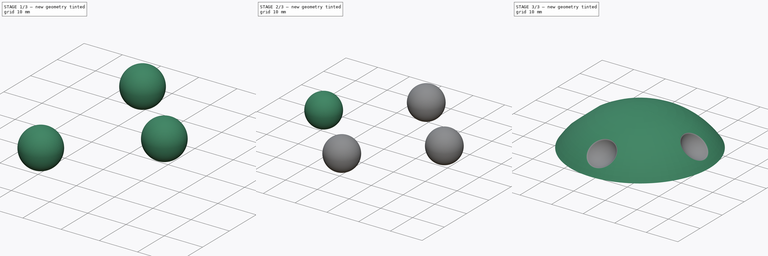
[diagram: build sequence overview — one tinted view per stage of 3, left to right]
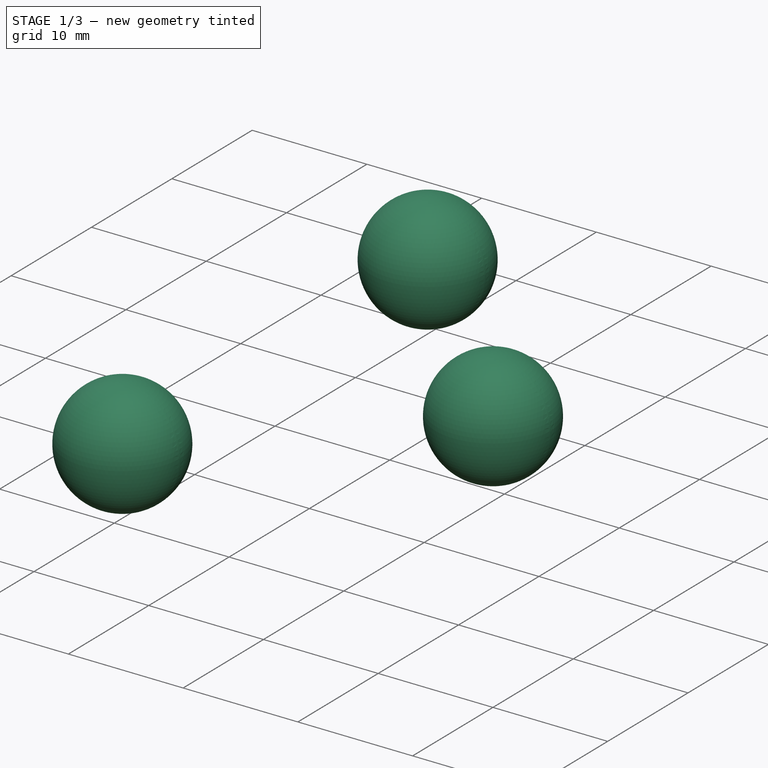
[diagram: stage 1 of 3 — iso view after this stage's code; geometry added in this stage tinted green]
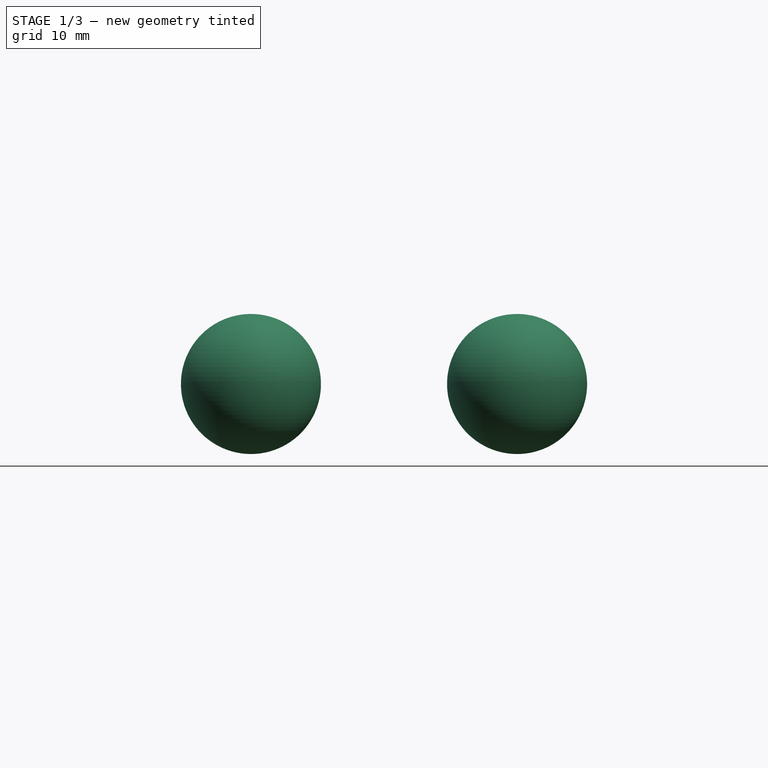
[diagram: stage 1 of 3 — front view after this stage's code; geometry added in this stage tinted green]
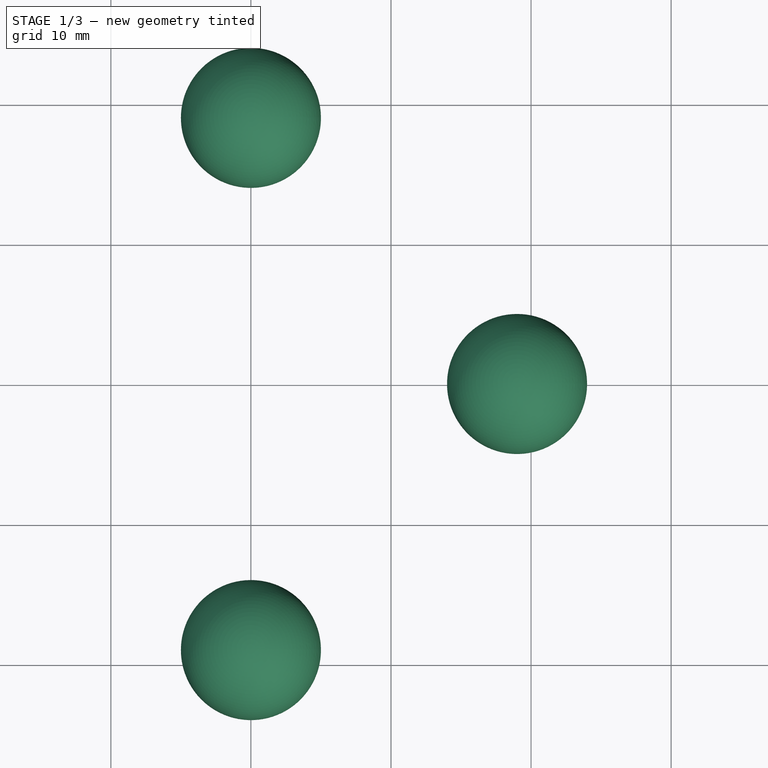
[diagram: stage 1 of 3 — top view after this stage's code; geometry added in this stage tinted green]
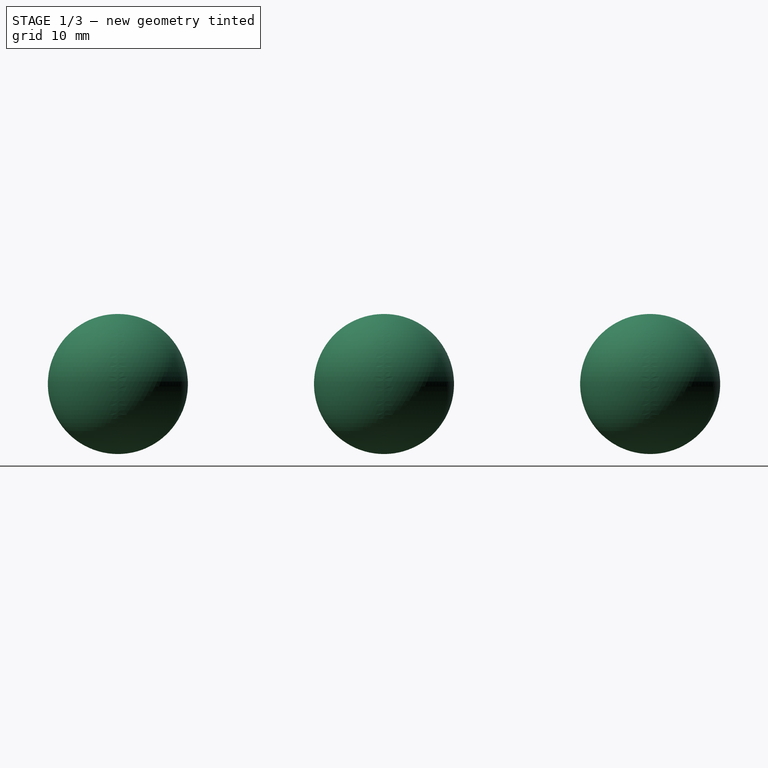
[diagram: stage 1 of 3 — right view after this stage's code; geometry added in this stage tinted green]
FCSTD DOCUMENT  (FreeCAD 0.16R5446 (Git))
Label: tv_cable_plug
License: All rights reserved
LicenseURL: http://en.wikipedia.org/wiki/All_rights_reserved
objects: Part::Sphere×4, Sketcher::SketchObject×1, PartDesign::Revolution×1, Part::MultiFuse×1, Part::Cut×1, PartDesign::Fillet×1
note: 10 computed .brp shape members not serialized (recipe doc carries the construction recipe); baked Part::Feature solids carry a one-line shape summary decoded from their .brp

FEATURE [Part::Sphere] Sphere001
  Angle1 = -90
  Angle2 = 90
  Angle3 = 360
  Placement = pos=(19,0,7) rot=(0,0,1;0rad)
  Radius = 5
FEATURE [Part::Sphere] Sphere002
  Angle1 = -90
  Angle2 = 90
  Angle3 = 360
  Placement = pos=(0,19,7) rot=(0,0,1;0rad)
  Radius = 5
FEATURE [Part::Sphere] Sphere003
  Angle1 = -90
  Angle2 = 90
  Angle3 = 360
  Placement = pos=(0,-19,7) rot=(0,0,1;0rad)
  Radius = 5
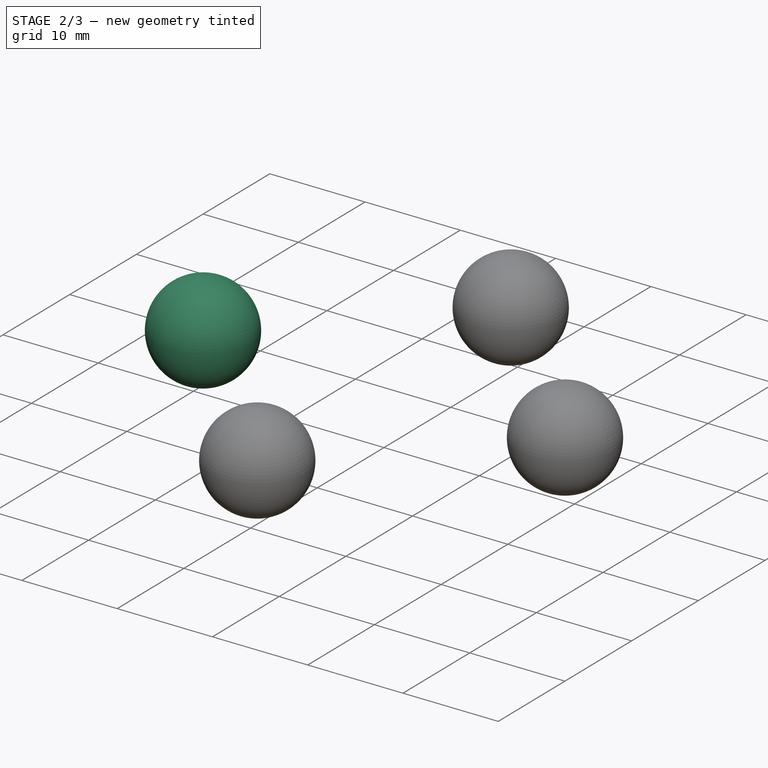
[diagram: stage 2 of 3 — iso view after this stage's code; geometry added in this stage tinted green]
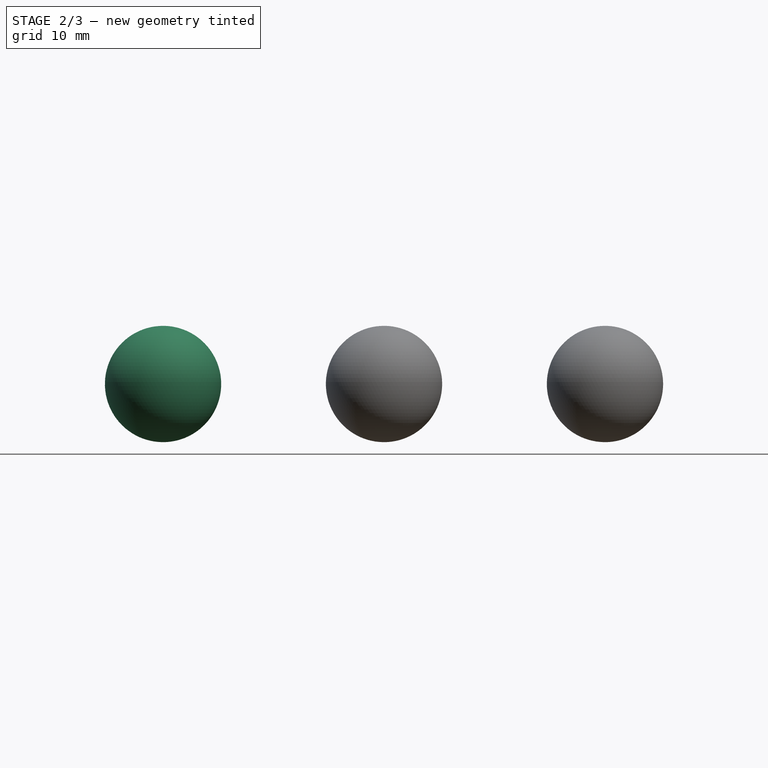
[diagram: stage 2 of 3 — front view after this stage's code; geometry added in this stage tinted green]
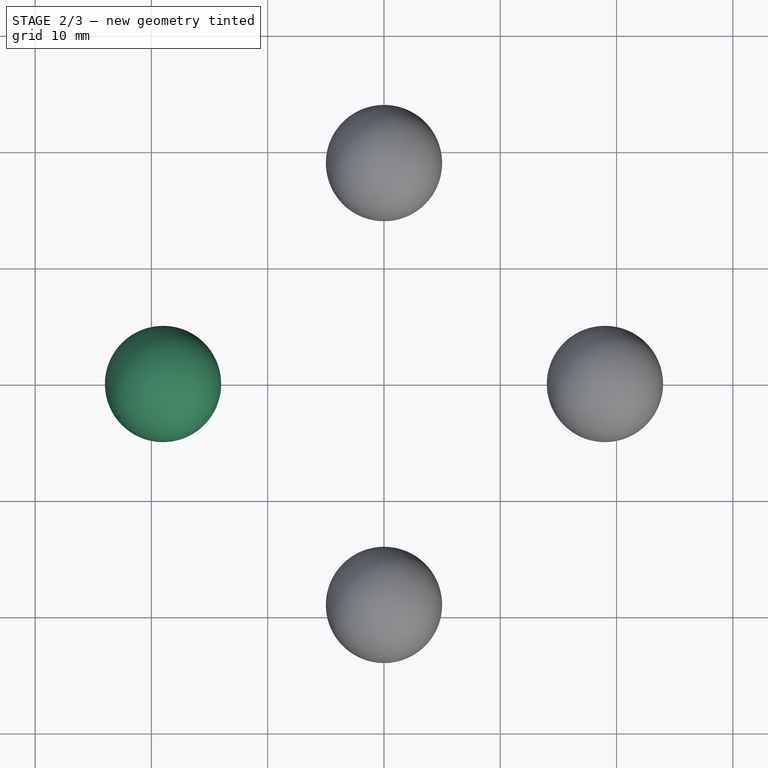
[diagram: stage 2 of 3 — top view after this stage's code; geometry added in this stage tinted green]
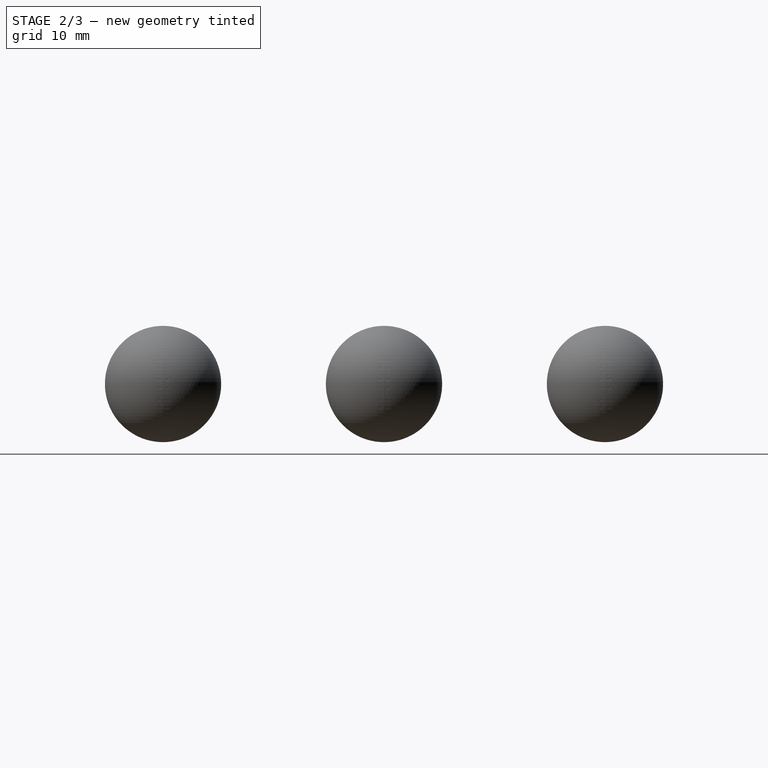
[diagram: stage 2 of 3 — right view after this stage's code; geometry added in this stage tinted green]
FEATURE [Part::Sphere] Sphere
  Angle1 = -90
  Angle2 = 90
  Angle3 = 360
  Placement = pos=(-19,0,7) rot=(0,0,1;0rad)
  Radius = 5
FEATURE [Part::MultiFuse] Fusion
  Shapes = -> [Sphere,Sphere002,Sphere003,Sphere001]
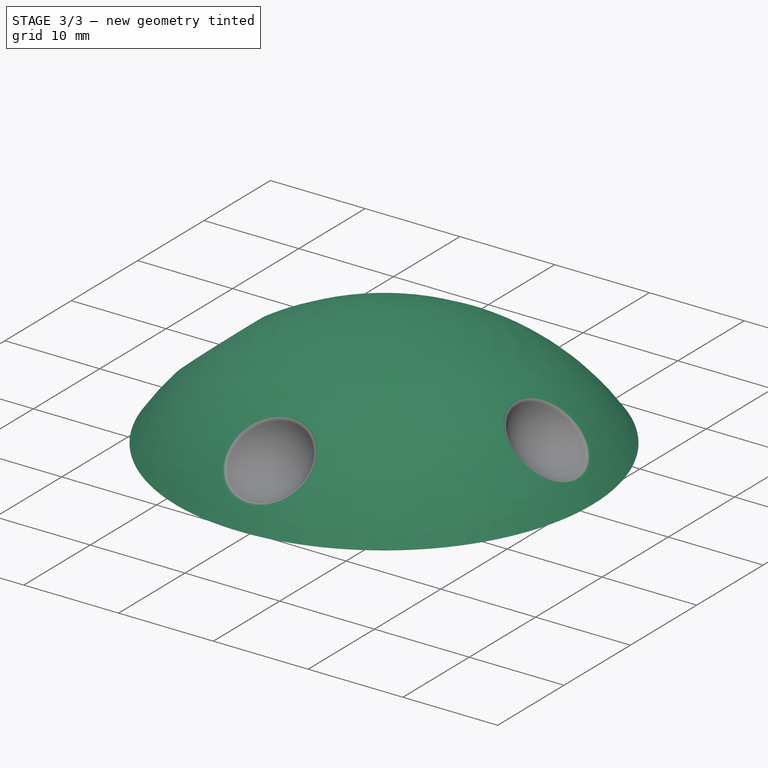
[diagram: stage 3 of 3 — iso view after this stage's code; geometry added in this stage tinted green]
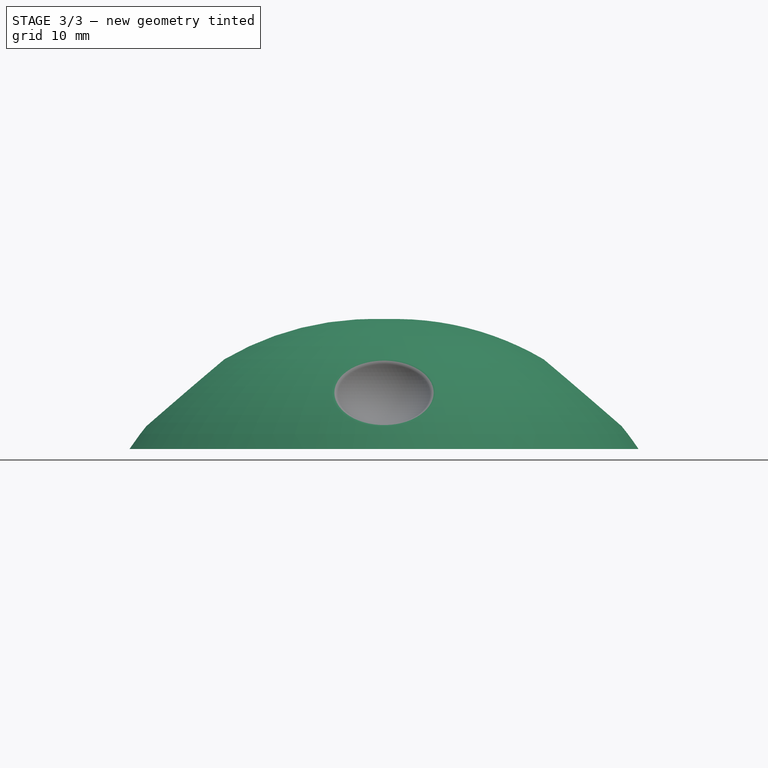
[diagram: stage 3 of 3 — front view after this stage's code; geometry added in this stage tinted green]
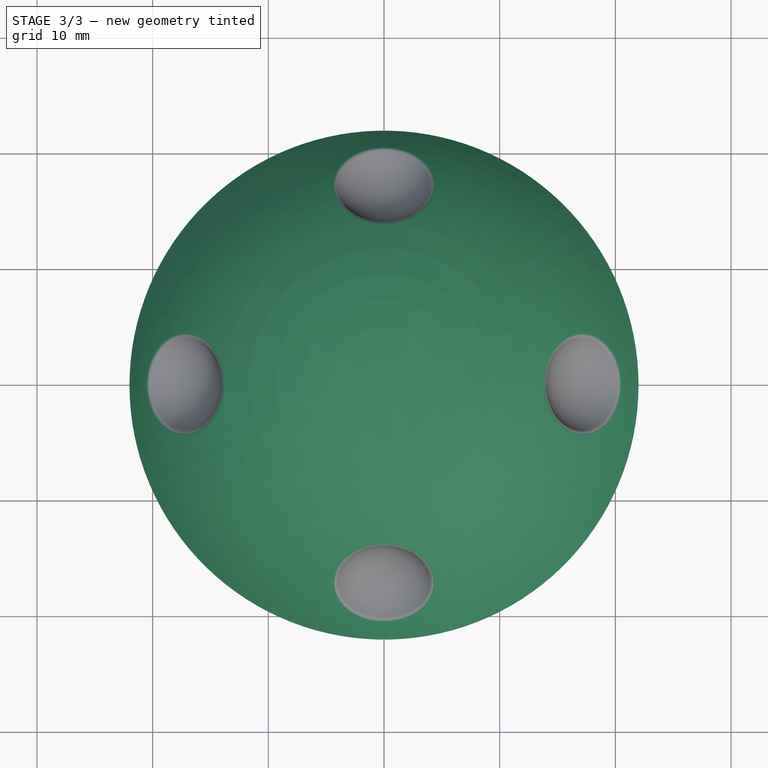
[diagram: stage 3 of 3 — top view after this stage's code; geometry added in this stage tinted green]
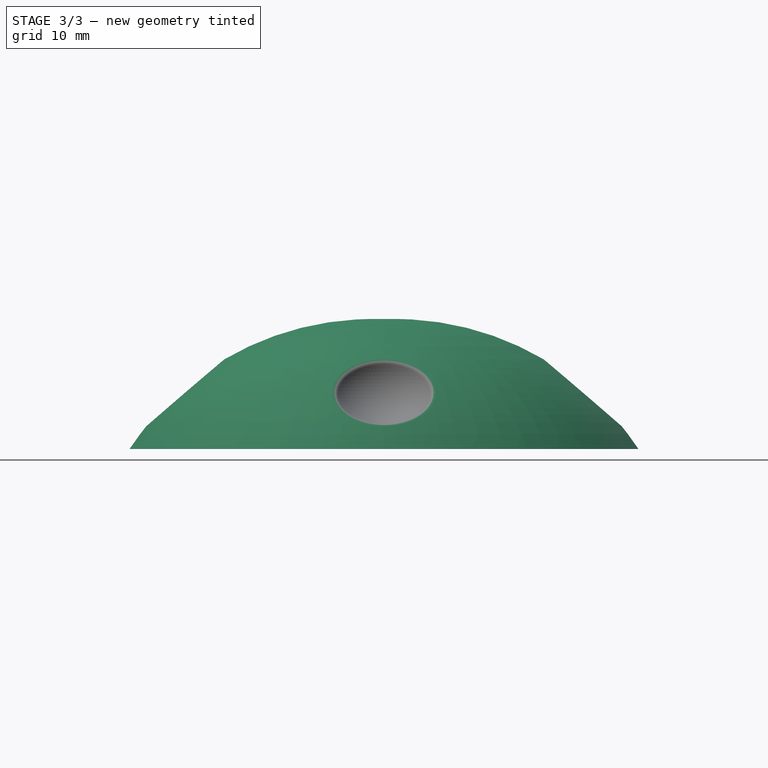
[diagram: stage 3 of 3 — right view after this stage's code; geometry added in this stage tinted green]
FEATURE [Sketcher::SketchObject] Sketch
  Placement = pos=(0,0,0) rot=(1,0,0;1.5708rad)
  sketch-geometry (16):
    g0: LineSegment StartX=5.65 StartY=0 StartZ=0 EndX=5.65 EndY=0.94163 EndZ=0
    g1: LineSegment StartX=4.20182 StartY=3.21463 StartZ=0 EndX=4.20182 EndY=8 EndZ=0
    g2: LineSegment StartX=4.15 StartY=9 StartZ=0 EndX=0 EndY=9 EndZ=0
    g3: LineSegment StartX=0 StartY=9 StartZ=0 EndX=0 EndY=11.2187 EndZ=0
    g4: LineSegment StartX=5.65 StartY=0 StartZ=0 EndX=7.48849 EndY=0 EndZ=0
    g5: ArcOfCircle CenterX=1.00005 CenterY=-14.0007 CenterZ=0 NormalX=0 NormalY=0 NormalZ=1 Radius=25.2392 StartAngle=0.588026 EndAngle=1.61043
    g6: LineSegment StartX=20.7827 StartY=0 StartZ=0 EndX=22 EndY=0 EndZ=0
    g7: LineSegment StartX=7.48849 StartY=0 StartZ=0 EndX=20.7827 EndY=0 EndZ=0
    g8: ArcOfCircle CenterX=3.33513 CenterY=1.06461 CenterZ=0 NormalX=0 NormalY=0 NormalZ=1 Radius=2.31814 StartAngle=6.23011 EndAngle=7.4708
    g9: LineSegment StartX=7 StartY=2 StartZ=0 EndX=5 EndY=4 EndZ=0
    g10: LineSegment StartX=5 StartY=4 StartZ=0 EndX=5 EndY=8 EndZ=0
    g11: LineSegment StartX=7 StartY=2 StartZ=0 EndX=7 EndY=3 EndZ=0
    g12: LineSegment StartX=7 StartY=3 StartZ=0 EndX=6 EndY=4 EndZ=0
    g13: LineSegment StartX=6 StartY=4 StartZ=0 EndX=6 EndY=9 EndZ=0
    g14: LineSegment StartX=6 StartY=9 StartZ=0 EndX=4.15 EndY=9 EndZ=0
    g15: LineSegment StartX=5 StartY=8 StartZ=0 EndX=4.20182 EndY=8 EndZ=0
  constraints (34):
    c: PointOnObject(g0,g-1)
    c: Vertical(g0)
    c: Vertical(g1)
    c: Horizontal(g2)
    c: Coincident(g2,g3)
    c: PointOnObject(g3,g-2)
    c: Vertical(g3)
    c: DistanceX(g-1,g0) = 5.65
    c: Coincident(g4,g0)
    c: Horizontal(g4)
    c: DistanceX(g0,g6) = 16.35
    c: Coincident(g5,g3)
    c: PointOnObject(g5,g4)
    c: Coincident(g6,g5)
    c: Tangent(g4,g6)
    c: Coincident(g7,g4)
    c: Coincident(g7,g6)
    c: Coincident(g1,g8)
    c: PointOnObject(g0,g8)
    c: Coincident(g0,g8)
    c: DistanceX(g2) = -4.15
    c: Coincident(g9,g10)
    c: Vertical(g10)
    c: Coincident(g9,g11)
    c: Vertical(g11)
    c: Coincident(g11,g12)
    c: Coincident(g12,g13)
    c: Vertical(g13)
    c: Coincident(g13,g14)
    c: Coincident(g14,g2)
    c: Horizontal(g14)
    c: Coincident(g10,g15)
    c: Horizontal(g15)
    c: Coincident(g1,g15)
FEATURE [PartDesign::Revolution] Revolution
  Angle = 360
  Axis = (0,0,1)
  Base = (0,0,0)
  Placement = pos=(0,0,0) rot=(1,0,0;1.5708rad)
  ReferenceAxis = -> Sketch [V_Axis]
  Reversed = true
  Sketch = -> Sketch
FEATURE [Part::Cut] Cut
  Base = -> Revolution
  Tool = -> Fusion
FEATURE [PartDesign::Fillet] Fillet
  Base = -> Cut [Edge12,Edge15,Edge21,Edge20,Edge18,Edge19,Edge17,Edge16]
  Radius = 0.5
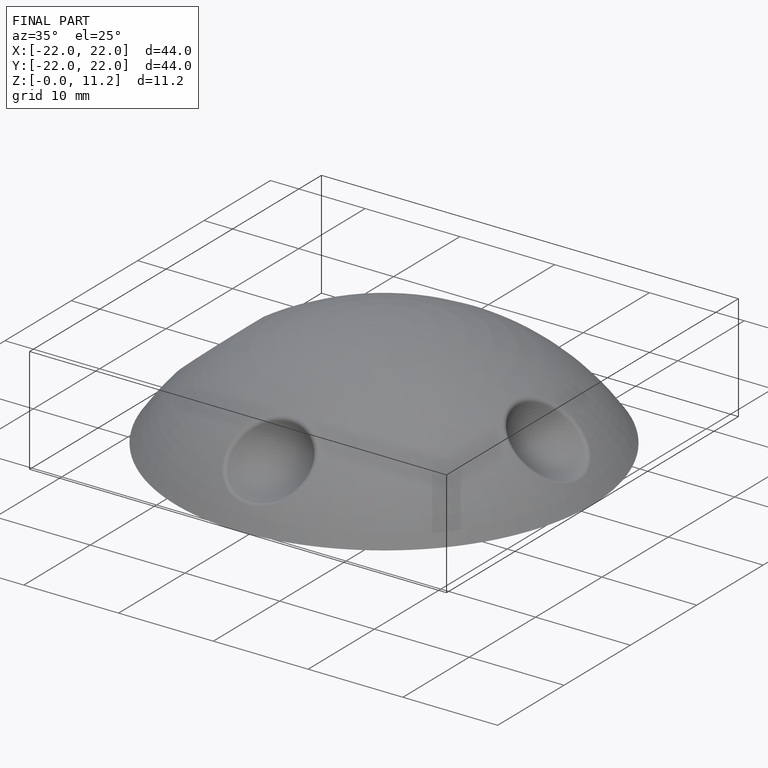
[diagram: finished part — iso view with bounding-box wireframe]
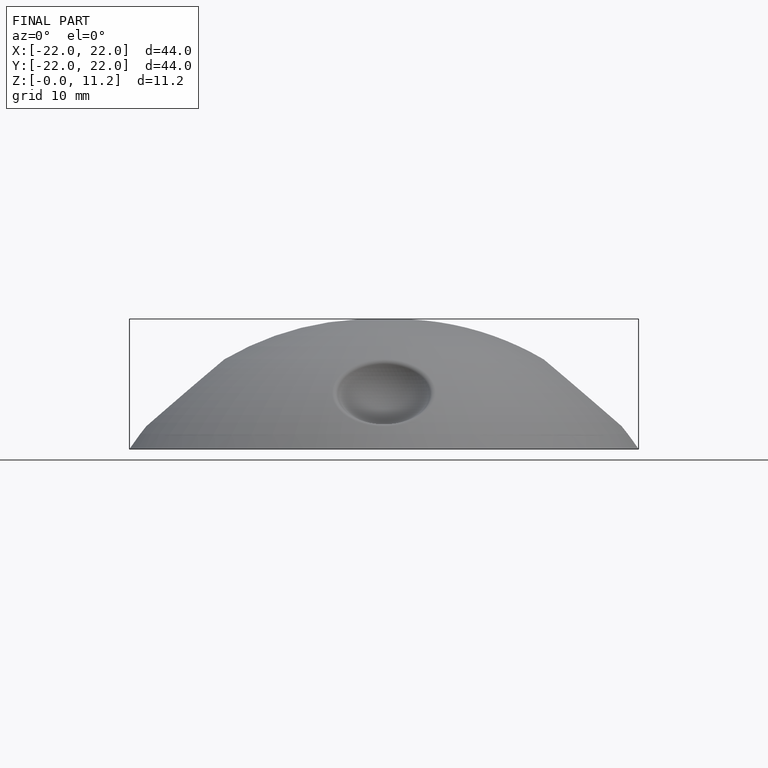
[diagram: finished part — front view with bounding-box wireframe]
